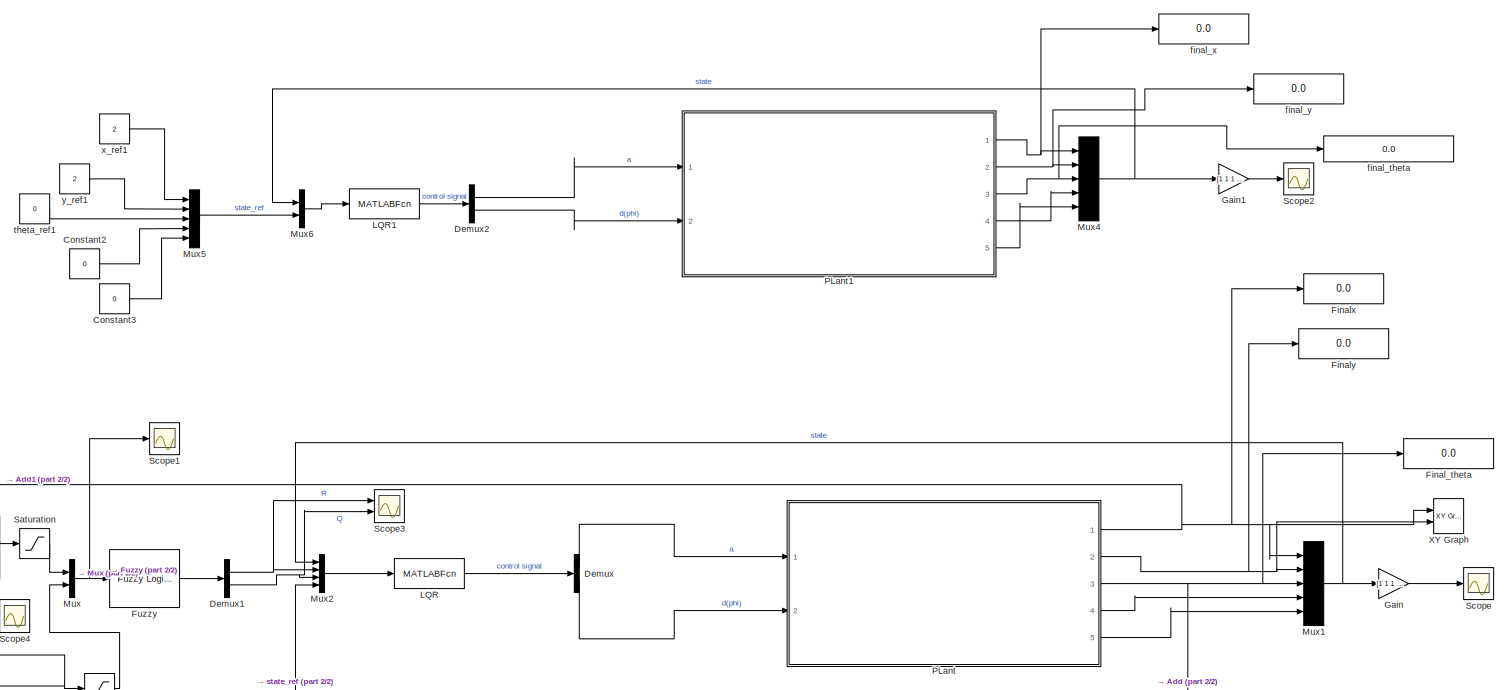
[diagram: root canvas - part 1/2, full width, middle band]
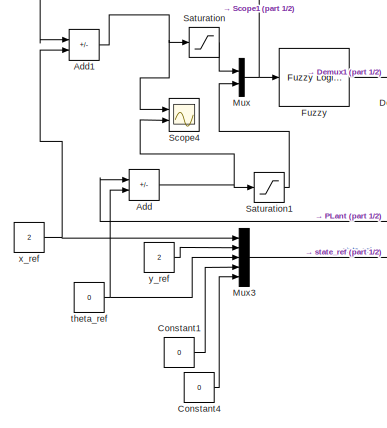
[diagram: root canvas - part 2/2, bottom left region]
MODEL slx_9bdc2e6377e4
KIND model
CONFIG AbsTol = auto
CONFIG EnableMultiTasking = off
CONFIG FixedStep = auto
CONFIG MaxStep = auto
CONFIG MinStep = auto
CONFIG RelTol = 1e-3
CONFIG SampleTimeConstraint = Unconstrained
CONFIG SolverName = VariableStepAuto
CONFIG StartTime = 0.0
CONFIG StopTime = 10
BLOCK [Sum] Add
  IconShape = rectangular
  Inputs = +-
  Ports = [2, 1]
BLOCK [Sum] Add1
  IconShape = rectangular
  Inputs = +-
  Ports = [2, 1]
BLOCK [Constant] Constant1
  Value = 0
BLOCK [Constant] Constant2
  Value = 0
BLOCK [Constant] Constant3
  Value = 0
BLOCK [Constant] Constant4
  Value = 0
BLOCK [Demux] Demux
  Outputs = 2
  Ports = [1, 2]
BLOCK [Demux] Demux1
  Outputs = 2
  Ports = [1, 2]
BLOCK [Demux] Demux2
  Outputs = 2
  Ports = [1, 2]
BLOCK [Display] Final_theta
  Decimation = 1
  Ports = [1]
BLOCK [Display] Finalx
  Decimation = 1
  Ports = [1]
BLOCK [Display] Finaly
  Decimation = 1
  Ports = [1]
BLOCK [Reference] Fuzzy  REF=fuzblock/Fuzzy Logic   (lib defined in mdl_858b3b3e7478)
Controller
  Ports = [1, 1]
  SourceBlock = fuzblock/Fuzzy Logic \nController
  SourceProductBaseCode = FL
  SourceType = Fuzzy Inference System
BLOCK [Gain] Gain
  Gain = [1 1 1 0 0 ]
BLOCK [Gain] Gain1
  Gain = [1 1 1 0 0]
BLOCK [MATLABFcn] LQR
  MATLABFcn = car(u(1:5),u(6),u(7),u(8:12))
  Output1D = off
  OutputDimensions = [2 1]
  Ports = [1, 1]
BLOCK [MATLABFcn] LQR1
  MATLABFcn = car_LQR(u(1:5),u(6:10))
  Output1D = off
  OutputDimensions = [2 1]
  Ports = [1, 1]
BLOCK [Mux] Mux
  DisplayOption = bar
  Inputs = 2
  Ports = [2, 1]
BLOCK [Mux] Mux1
  DisplayOption = bar
  Inputs = 5
  Ports = [5, 1]
BLOCK [Mux] Mux2
  DisplayOption = bar
  Ports = [4, 1]
BLOCK [Mux] Mux3
  DisplayOption = bar
  Inputs = 5
  Ports = [5, 1]
BLOCK [Mux] Mux4
  DisplayOption = bar
  Inputs = 5
  Ports = [5, 1]
BLOCK [Mux] Mux5
  DisplayOption = bar
  Inputs = 5
  Ports = [5, 1]
BLOCK [Mux] Mux6
  DisplayOption = bar
  Inputs = 2
  Ports = [2, 1]
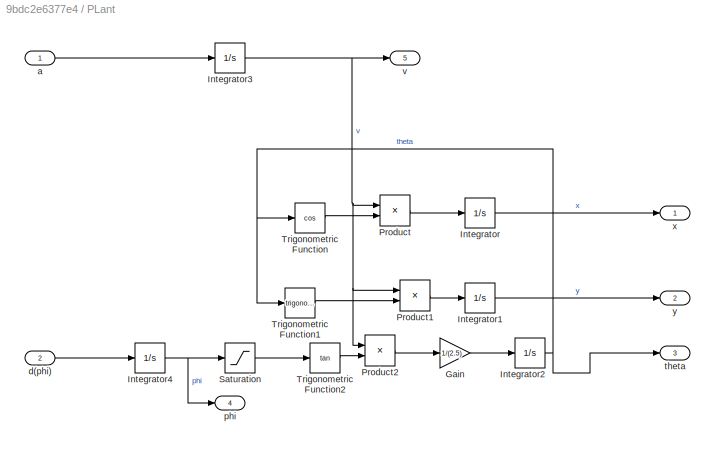
BLOCK [SubSystem] PLant
  Ports = [2, 5]
  RequestExecContextInheritance = off
BLOCK [Gain] PLant/Gain
  Gain = 1/(2.5)
BLOCK [Integrator] PLant/Integrator
  Ports = [1, 1]
BLOCK [Integrator] PLant/Integrator1
  Ports = [1, 1]
BLOCK [Integrator] PLant/Integrator2
  InitialCondition = .3
  Ports = [1, 1]
BLOCK [Integrator] PLant/Integrator3
  InitialCondition = 1
  Ports = [1, 1]
BLOCK [Integrator] PLant/Integrator4
  Ports = [1, 1]
BLOCK [Product] PLant/Product
  Ports = [2, 1]
BLOCK [Product] PLant/Product1
  Ports = [2, 1]
BLOCK [Product] PLant/Product2
  Ports = [2, 1]
BLOCK [Saturate] PLant/Saturation
  LowerLimit = -0.52
  UpperLimit = .52
BLOCK [Trigonometry] PLant/Trigonometric Function
  Operator = cos
  Ports = [1, 1]
BLOCK [Trigonometry] PLant/Trigonometric Function1
  Ports = [1, 1]
BLOCK [Trigonometry] PLant/Trigonometric Function2
  Operator = tan
  Ports = [1, 1]
BLOCK [Inport] PLant/a
BLOCK [Inport] PLant/d(phi)
  Port = 2
BLOCK [Outport] PLant/phi
  Port = 4
BLOCK [Outport] PLant/theta
  Port = 3
BLOCK [Outport] PLant/v
  Port = 5
BLOCK [Outport] PLant/x
BLOCK [Outport] PLant/y
  Port = 2
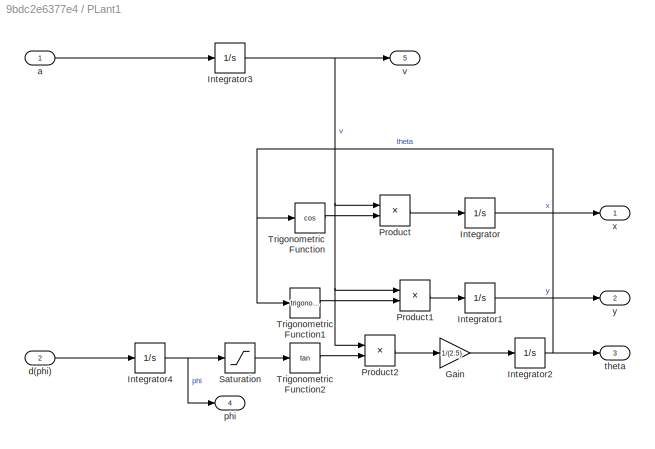
BLOCK [SubSystem] PLant1
  Ports = [2, 5]
  RequestExecContextInheritance = off
BLOCK [Gain] PLant1/Gain
  Gain = 1/(2.5)
BLOCK [Integrator] PLant1/Integrator
  Ports = [1, 1]
BLOCK [Integrator] PLant1/Integrator1
  Ports = [1, 1]
BLOCK [Integrator] PLant1/Integrator2
  InitialCondition = .3
  Ports = [1, 1]
BLOCK [Integrator] PLant1/Integrator3
  InitialCondition = .5
  Ports = [1, 1]
BLOCK [Integrator] PLant1/Integrator4
  Ports = [1, 1]
BLOCK [Product] PLant1/Product
  Ports = [2, 1]
BLOCK [Product] PLant1/Product1
  Ports = [2, 1]
BLOCK [Product] PLant1/Product2
  Ports = [2, 1]
BLOCK [Saturate] PLant1/Saturation
  LowerLimit = -0.52
  UpperLimit = .52
BLOCK [Trigonometry] PLant1/Trigonometric Function
  Operator = cos
  Ports = [1, 1]
BLOCK [Trigonometry] PLant1/Trigonometric Function1
  Ports = [1, 1]
BLOCK [Trigonometry] PLant1/Trigonometric Function2
  Operator = tan
  Ports = [1, 1]
BLOCK [Inport] PLant1/a
BLOCK [Inport] PLant1/d(phi)
  Port = 2
BLOCK [Outport] PLant1/phi
  Port = 4
BLOCK [Outport] PLant1/theta
  Port = 3
BLOCK [Outport] PLant1/v
  Port = 5
BLOCK [Outport] PLant1/x
BLOCK [Outport] PLant1/y
  Port = 2
BLOCK [Saturate] Saturation
  LowerLimit = -3
  UpperLimit = 3
  ZeroCross = off
BLOCK [Saturate] Saturation1
  LowerLimit = -pi/4
  UpperLimit = pi/4
  ZeroCross = off
BLOCK [Scope] Scope
  Floating = off
  NumInputPorts = 1
  Ports = [1]
  ScopeSpecificationString = Simulink.scopes.TimeScopeBlockCfg('CurrentConfiguration', extmgr.ConfigurationSet(extmgr.Configuration('Core','General UI',true),extmgr.Configuration('Core','Source UI',true),extmgr.Configuration('Sources','WiredSimulink',true),extmgr.Configuration('Visuals','Time Domain',true,'SerializedDisplays',{struct('MinYLimReal','-0.67813','MaxYLimReal','6.10321','YLabelReal','','MinYLimMag','0.00000','MaxY...<+1510ch>
BLOCK [Scope] Scope1
  Floating = off
  NumInputPorts = 1
  Ports = [1]
  ScopeSpecificationString = Simulink.scopes.TimeScopeBlockCfg('CurrentConfiguration', extmgr.ConfigurationSet(extmgr.Configuration('Core','General UI',true),extmgr.Configuration('Core','Source UI',true),extmgr.Configuration('Sources','WiredSimulink',true,'DataLoggingVariableName','ScopeData1'),extmgr.Configuration('Visuals','Time Domain',true,'SerializedDisplays',{struct('MinYLimReal','-2.625','MaxYLimReal','3.625','YLabelRe...<+1371ch>
BLOCK [Scope] Scope2
  Floating = off
  NumInputPorts = 1
  Ports = [1]
  ScopeSpecificationString = Simulink.scopes.TimeScopeBlockCfg('CurrentConfiguration', extmgr.ConfigurationSet(extmgr.Configuration('Core','General UI',true),extmgr.Configuration('Core','Source UI',true),extmgr.Configuration('Sources','WiredSimulink',true,'DataLoggingVariableName','ScopeData1'),extmgr.Configuration('Visuals','Time Domain',true,'SerializedDisplays',{struct('MinYLimReal','-0.58934','MaxYLimReal','5.30403','YLab...<+1439ch>
BLOCK [Scope] Scope3
  Floating = off
  NumInputPorts = 2
  Ports = [2]
  ScopeSpecificationString = Simulink.scopes.TimeScopeBlockCfg('CurrentConfiguration', extmgr.ConfigurationSet(extmgr.Configuration('Core','General UI',true),extmgr.Configuration('Core','Source UI',true),extmgr.Configuration('Sources','WiredSimulink',true,'DataLoggingVariableName','ScopeData2'),extmgr.Configuration('Visuals','Time Domain',true,'SerializedDisplays',{struct('MinYLimReal','-2.86936','MaxYLimReal','28.0945','YLab...<+1390ch>
BLOCK [Scope] Scope4
  Floating = off
  NumInputPorts = 2
  Ports = [2]
  ScopeSpecificationString = Simulink.scopes.TimeScopeBlockCfg('CurrentConfiguration', extmgr.ConfigurationSet(extmgr.Configuration('Core','General UI',true),extmgr.Configuration('Core','Source UI',true),extmgr.Configuration('Sources','WiredSimulink',true,'DataLoggingVariableName','ScopeData3'),extmgr.Configuration('Visuals','Time Domain',true,'SerializedDisplays',{struct('MinYLimReal','-2.67813','MaxYLimReal','4.10321','YLab...<+1369ch>
BLOCK [Reference] XY Graph  REF=simulink/Sinks/XY Graph
  Ports = [2]
  SourceBlock = simulink/Sinks/XY Graph
  SourceProductBaseCode = SL
  SourceType = XY scope.
BLOCK [Display] final_theta
  Decimation = 1
  Ports = [1]
BLOCK [Display] final_x
  Decimation = 1
  Ports = [1]
BLOCK [Display] final_y
  Decimation = 1
  Ports = [1]
BLOCK [Constant] theta_ref
  Value = 0
BLOCK [Constant] theta_ref1
  Value = 0
BLOCK [Constant] x_ref
  Value = 2
BLOCK [Constant] x_ref1
  Value = 2
BLOCK [Constant] y_ref
  Value = 2
BLOCK [Constant] y_ref1
  Value = 2
NET Add1:1 -> Saturation:1, Scope4:1
NET Add:1 -> Saturation1:1, Scope4:2
LINE Constant1:1 -> Mux3:4
LINE Constant2:1 -> Mux5:4
LINE Constant3:1 -> Mux5:5
LINE Constant4:1 -> Mux3:5
NET Demux1:1 -> Mux2:2, Scope3:1
NET Demux1:2 -> Mux2:3, Scope3:2
LINE Demux2:1 -> PLant1:1
LINE Demux2:2 -> PLant1:2
LINE Demux:1 -> PLant:1
LINE Demux:2 -> PLant:2
LINE Fuzzy:1 -> Demux1:1
LINE Gain1:1 -> Scope2:1
LINE Gain:1 -> Scope:1
LINE LQR1:1 -> Demux2:1
LINE LQR:1 -> Demux:1
NET Mux1:1 -> Gain:1, Mux2:1
LINE Mux2:1 -> LQR:1
LINE Mux3:1 -> Mux2:4
NET Mux4:1 -> Gain1:1, Mux6:1
LINE Mux5:1 -> Mux6:2
LINE Mux6:1 -> LQR1:1
NET Mux:1 -> Fuzzy:1, Scope1:1
LINE PLant/Gain:1 -> PLant/Integrator2:1
LINE PLant/Integrator1:1 -> PLant/y:1
NET PLant/Integrator2:1 -> PLant/Trigonometric Function1:1, PLant/Trigonometric Function:1, PLant/theta:1
NET PLant/Integrator3:1 -> PLant/Product1:1, PLant/Product2:1, PLant/Product:1, PLant/v:1
NET PLant/Integrator4:1 -> PLant/Saturation:1, PLant/phi:1
LINE PLant/Integrator:1 -> PLant/x:1
LINE PLant/Product1:1 -> PLant/Integrator1:1
LINE PLant/Product2:1 -> PLant/Gain:1
LINE PLant/Product:1 -> PLant/Integrator:1
LINE PLant/Saturation:1 -> PLant/Trigonometric Function2:1
LINE PLant/Trigonometric Function1:1 -> PLant/Product1:2
LINE PLant/Trigonometric Function2:1 -> PLant/Product2:2
LINE PLant/Trigonometric Function:1 -> PLant/Product:2
LINE PLant/a:1 -> PLant/Integrator3:1
LINE PLant/d(phi):1 -> PLant/Integrator4:1
LINE PLant1/Gain:1 -> PLant1/Integrator2:1
LINE PLant1/Integrator1:1 -> PLant1/y:1
NET PLant1/Integrator2:1 -> PLant1/Trigonometric Function1:1, PLant1/Trigonometric Function:1, PLant1/theta:1
NET PLant1/Integrator3:1 -> PLant1/Product1:1, PLant1/Product2:1, PLant1/Product:1, PLant1/v:1
NET PLant1/Integrator4:1 -> PLant1/Saturation:1, PLant1/phi:1
LINE PLant1/Integrator:1 -> PLant1/x:1
LINE PLant1/Product1:1 -> PLant1/Integrator1:1
LINE PLant1/Product2:1 -> PLant1/Gain:1
LINE PLant1/Product:1 -> PLant1/Integrator:1
LINE PLant1/Saturation:1 -> PLant1/Trigonometric Function2:1
LINE PLant1/Trigonometric Function1:1 -> PLant1/Product1:2
LINE PLant1/Trigonometric Function2:1 -> PLant1/Product2:2
LINE PLant1/Trigonometric Function:1 -> PLant1/Product:2
LINE PLant1/a:1 -> PLant1/Integrator3:1
LINE PLant1/d(phi):1 -> PLant1/Integrator4:1
NET PLant1:1 -> Mux4:1, final_x:1
NET PLant1:2 -> Mux4:2, final_y:1
NET PLant1:3 -> Mux4:3, final_theta:1
LINE PLant1:4 -> Mux4:4
LINE PLant1:5 -> Mux4:5
NET PLant:1 -> Add1:1, Finalx:1, Mux1:1, XY Graph:1
NET PLant:2 -> Finaly:1, Mux1:2, XY Graph:2
NET PLant:3 -> Add:1, Final_theta:1, Mux1:3
LINE PLant:4 -> Mux1:4
LINE PLant:5 -> Mux1:5
LINE Saturation1:1 -> Mux:2
LINE Saturation:1 -> Mux:1
LINE theta_ref1:1 -> Mux5:3
NET theta_ref:1 -> Add:2, Mux3:3
LINE x_ref1:1 -> Mux5:1
NET x_ref:1 -> Add1:2, Mux3:1
LINE y_ref1:1 -> Mux5:2
LINE y_ref:1 -> Mux3:2
note: NET lines group one-source signal fan-out (src -> all destinations, sorted); 1:1 wires keep LINE
